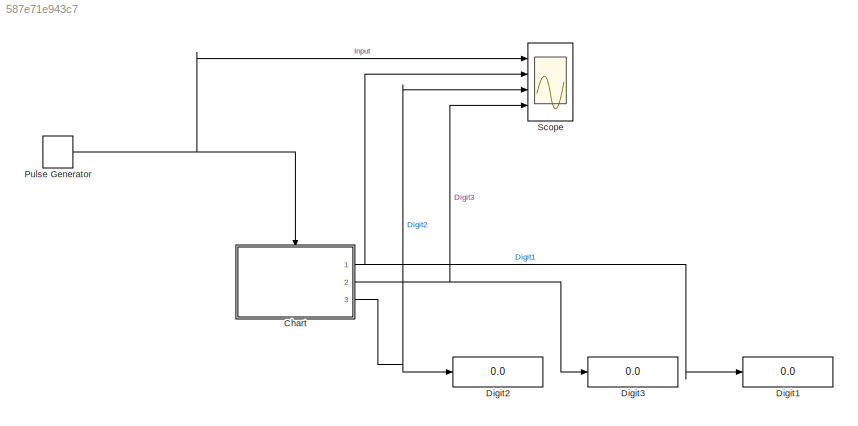
MODEL slx_587e71e943c7
KIND model
CONFIG AbsTol = auto
CONFIG EnableMultiTasking = off
CONFIG FixedStep = auto
CONFIG MaxStep = auto
CONFIG MinStep = auto
CONFIG RelTol = 1e-3
CONFIG SampleTimeConstraint = Unconstrained
CONFIG SolverName = VariableStepAuto
CONFIG StartTime = 0.0
CONFIG StopTime = 10.0
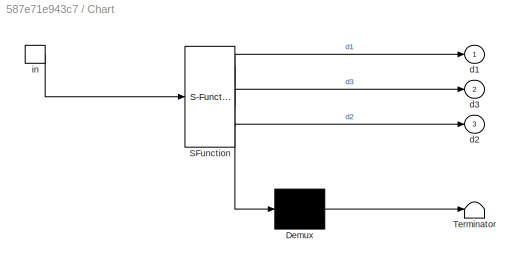
BLOCK [SubSystem] Chart
  ErrorFcn = Stateflow.Translate.translate
  PermitHierarchicalResolution = ExplicitOnly
  Ports = [0, 3, 0, 1]
  RequestExecContextInheritance = off
  SFBlockType = Chart
  TreatAsAtomicUnit = on
BLOCK [Demux] Chart/ Demux 
  Outputs = 1
  Ports = [1, 1]
BLOCK [S-Function] Chart/ SFunction 
  EnableBusSupport = on
  FunctionName = sf_sfun
  PortCounts = [1 4]
  Ports = [1, 4]
  SFcnIsStateOwnerBlock = off
  SFunctionDeploymentMode = off
  Tag = Stateflow S-Function 3
BLOCK [Terminator] Chart/ Terminator 
BLOCK [Outport] Chart/d1
BLOCK [Outport] Chart/d2
  Port = 3
BLOCK [Outport] Chart/d3
  Port = 2
BLOCK [TriggerPort] Chart/in
  Ports = [0, 1]
  ShowOutputPort = on
  StatesWhenEnabling = held
  TriggerType = either
  VariantControl = (inherit)
BLOCK [Display] Digit1
  Decimation = 1
  Ports = [1]
BLOCK [Display] Digit2
  Decimation = 1
  Ports = [1]
BLOCK [Display] Digit3
  Decimation = 1
  Ports = [1]
BLOCK [DiscretePulseGenerator] Pulse Generator
  Period = 0.1
  Ports = [0, 1]
  PulseType = Time based
  PulseWidth = 5
BLOCK [Scope] Scope
  Floating = off
  NumInputPorts = 4
  Ports = [4]
  ScopeSpecificationString = Simulink.scopes.TimeScopeBlockCfg('CurrentConfiguration', extmgr.ConfigurationSet(extmgr.Configuration('Core','General UI',true),extmgr.Configuration('Core','Source UI',true),extmgr.Configuration('Sources','WiredSimulink',true),extmgr.Configuration('Visuals','Time Domain',true,'SerializedDisplays',{struct('MinYLimReal','-0.125','MaxYLimReal','1.125','YLabelReal','','MinYLimMag','0.00000','MaxYLimM...<+3319ch>
NET Chart:1 -> Digit1:1, Scope:2
NET Chart:2 -> Digit3:1, Scope:4
NET Chart:3 -> Digit2:1, Scope:3
NET Pulse Generator:1 -> Chart:trigger, Scope:1
note: NET lines group one-source signal fan-out (src -> all destinations, sorted); 1:1 wires keep LINE
CHART Chart states=18 transitions=18
  STATE_LABEL 'digit1'
  STATE_LABEL 'One\nen:\nd1=1;'
  STATE_LABEL 'Two\nen:\nd1=2;'
  STATE_LABEL 'Three\nen:\nd1=3;'
  STATE_LABEL 'Zero\nen:\nd1=0;'
  STATE_LABEL 'Four\nen:\nd1=4;'
  STATE_LABEL 'in'
  STATE_LABEL 'in'
  STATE_LABEL 'in'
  STATE_LABEL 'in'
  STATE_LABEL 'in/{in2}'
  STATE_LABEL 'One\nen:\nd1=1;'
  STATE_LABEL 'Two\nen:\nd1=2;'
  STATE_LABEL 'Three\nen:\nd1=3;'
  STATE_LABEL 'Zero\nen:\nd1=0;'
  STATE_LABEL 'Four\nen:\nd1=4;'
  STATE_LABEL 'digit2'
  STATE_LABEL 'One\nen:\nd2=1;'
  STATE_LABEL 'Two\nen:\nd2=2;'
  STATE_LABEL 'Three\nen:\nd2=3;'
  STATE_LABEL 'Zero\nen:\nd2=0;'
  STATE_LABEL 'Four\nen:\nd2=4;'
  STATE_LABEL 'in2'
  STATE_LABEL 'in2'
  STATE_LABEL 'in2'
  STATE_LABEL 'in2'
  STATE_LABEL 'in2/{in3;}'
  STATE_LABEL 'One\nen:\nd2=1;'
  STATE_LABEL 'Two\nen:\nd2=2;'
  STATE_LABEL 'Three\nen:\nd2=3;'
  STATE_LABEL 'Zero\nen:\nd2=0;'
  STATE_LABEL 'Four\nen:\nd2=4;'
  STATE_LABEL 'digit3'
  STATE_LABEL 'One\nen:\nd3=1;'
  STATE_LABEL 'Two\nen:\nd3=2;'
  STATE_LABEL 'Three\nen:\nd3=3;'
  STATE_LABEL 'Zero\nen:\nd3=0;'
  STATE_LABEL 'Four\nen:\nd3=4;'
  STATE_LABEL 'in3'
  STATE_LABEL 'in3'
CHART  states=0 transitions=0
